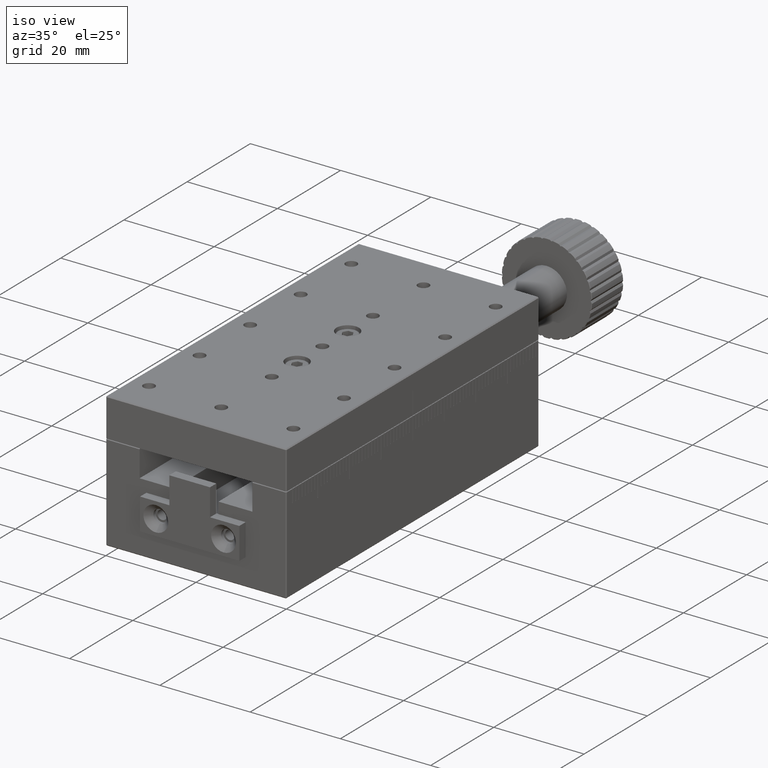
[diagram: clean part render]
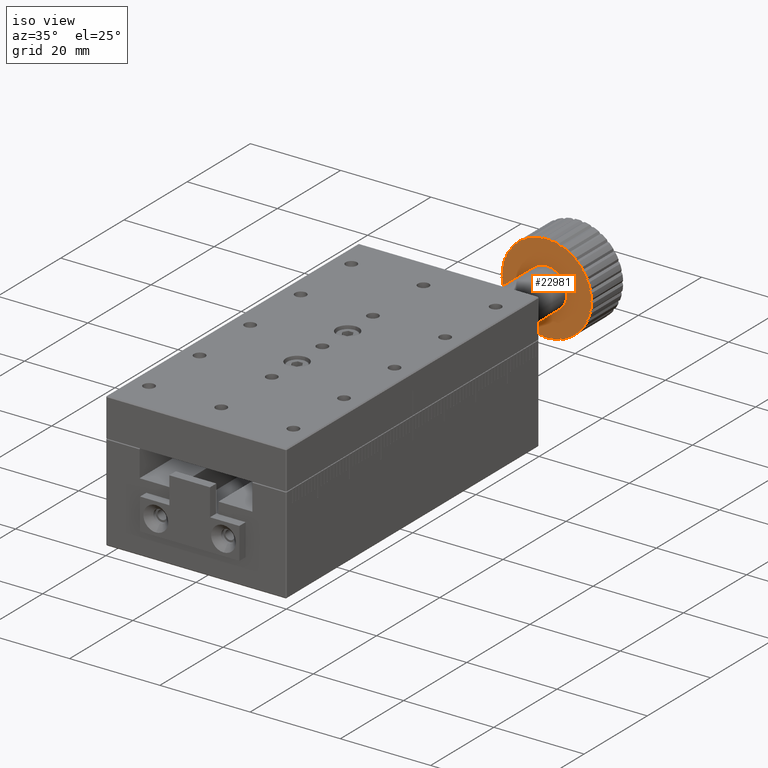
[diagram: same view with one face highlighted and labeled with its STEP entity id]
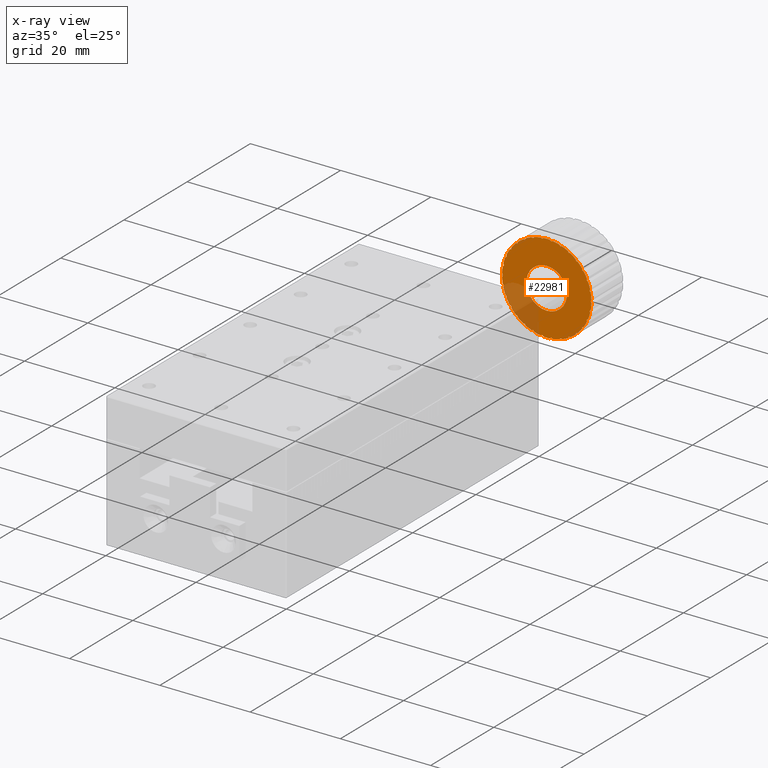
[diagram: x-ray of the same camera — body ghosted, the highlighted face saturated]
A machine part, iso view. The second image highlights one B-rep face of the part: STEP entity #22981.
The next image is the same camera in x-ray: the body ghosted, the highlighted face saturated — about 18% of this face is hidden behind the body in this view.
In plain terms, the highlighted planar face has unit normal (0, 1, 0).
Its self-contained STEP definition (entity closure, byte-faithful):
#76 = ORIENTED_EDGE ( 'NONE', *, *, #2663, .T. ) ;
#163 = VERTEX_POINT ( 'NONE', #7104 ) ;
#196 = LINE ( 'NONE', #10743, #4490 ) ;
#217 = LINE ( 'NONE', #3878, #16400 ) ;
#238 = VERTEX_POINT ( 'NONE', #23415 ) ;
#248 = EDGE_CURVE ( 'NONE', #21812, #12477, #15667, .T. ) ;
#254 = LINE ( 'NONE', #20639, #5194 ) ;
#298 = EDGE_CURVE ( 'NONE', #941, #14638, #15009, .T. ) ;
#302 = CARTESIAN_POINT ( 'NONE',  ( 0.7908932905000000100, 71.00000000000001400, 24.32102808800000200 ) ) ;
#381 = VECTOR ( 'NONE', #3602, 1000.000000000000200 ) ;
#427 = ORIENTED_EDGE ( 'NONE', *, *, #2290, .T. ) ;
#458 = DIRECTION ( 'NONE',  ( 0.0000000000000000000, 0.0000000000000000000, -1.000000000000000000 ) ) ;
#466 = DIRECTION ( 'NONE',  ( 0.6691306060866301100, 0.0000000000000000000, 0.7431448257225093900 ) ) ;
#478 = VERTEX_POINT ( 'NONE', #7133 ) ;
#695 = CIRCLE ( 'NONE', #26715, 9.900000000000000400 ) ;
#708 = CARTESIAN_POINT ( 'NONE',  ( -6.857258225726241100, 71.00000000000001400, 7.359411114921275800 ) ) ;
#848 = VERTEX_POINT ( 'NONE', #10708 ) ;
#859 = EDGE_CURVE ( 'NONE', #238, #22002, #14955, .T. ) ;
#928 = AXIS2_PLACEMENT_3D ( 'NONE', #11682, #26435, #13819 ) ;
#938 = LINE ( 'NONE', #3841, #11475 ) ;
#941 = VERTEX_POINT ( 'NONE', #14807 ) ;
#961 = VECTOR ( 'NONE', #2161, 1000.000000000000000 ) ;
#1060 = VERTEX_POINT ( 'NONE', #21342 ) ;
#1170 = VERTEX_POINT ( 'NONE', #19744 ) ;
#1179 = VERTEX_POINT ( 'NONE', #25245 ) ;
#1227 = DIRECTION ( 'NONE',  ( 0.0000000000000000000, 1.000000000000000000, -0.0000000000000000000 ) ) ;
#1247 = ORIENTED_EDGE ( 'NONE', *, *, #5593, .T. ) ;
#1257 = LINE ( 'NONE', #23924, #21741 ) ;
#1273 = DIRECTION ( 'NONE',  ( 0.0000000000000000000, 0.0000000000000000000, 1.000000000000000000 ) ) ;
#1301 = DIRECTION ( 'NONE',  ( 0.0000000000000000000, 0.0000000000000000000, 1.000000000000000000 ) ) ;
#1304 = CARTESIAN_POINT ( 'NONE',  ( 9.499109117128835300, 71.00000000000001400, 12.48090202660349500 ) ) ;
#1307 = DIRECTION ( 'NONE',  ( 1.000000000000000000, 0.0000000000000000000, 0.0000000000000000000 ) ) ;
#1326 = EDGE_CURVE ( 'NONE', #10853, #1502, #17932, .T. ) ;
#1353 = EDGE_CURVE ( 'NONE', #1060, #22044, #12287, .T. ) ;
#1388 = CARTESIAN_POINT ( 'NONE',  ( -1.350505600759480500, 71.00000000046399900, 24.30745301449384900 ) ) ;
#1415 = EDGE_CURVE ( 'NONE', #24068, #17797, #10947, .T. ) ;
#1502 = VERTEX_POINT ( 'NONE', #16128 ) ;
#1518 = CARTESIAN_POINT ( 'NONE',  ( -2.755302259289262400, 71.00000000000001400, 24.00885426641693200 ) ) ;
#1530 = CIRCLE ( 'NONE', #16447, 4.499999999999999100 ) ;
#1537 = ORIENTED_EDGE ( 'NONE', *, *, #1326, .T. ) ;
#1539 = LINE ( 'NONE', #25950, #12099 ) ;
#1547 = EDGE_CURVE ( 'NONE', #10755, #15519, #11255, .T. ) ;
#1562 = VECTOR ( 'NONE', #25789, 1000.000000000000000 ) ;
#1563 = CARTESIAN_POINT ( 'NONE',  ( 0.0000000000000000000, 71.00000000000001400, 14.50000000000000000 ) ) ;
#1569 = VECTOR ( 'NONE', #7955, 1000.000000000000100 ) ;
#1591 = ORIENTED_EDGE ( 'NONE', *, *, #26279, .T. ) ;
#1714 = VECTOR ( 'NONE', #14204, 1000.000000000000100 ) ;
#1731 = CARTESIAN_POINT ( 'NONE',  ( -6.412501585500000300, 71.00000000000001400, 21.98050321300000600 ) ) ;
#1775 = DIRECTION ( 'NONE',  ( 0.0000000000000000000, 0.0000000000000000000, 1.000000000000000000 ) ) ;
#1799 = CARTESIAN_POINT ( 'NONE',  ( 9.095953292000000800, 71.00000000000001400, 18.28704879950000300 ) ) ;
#1816 = DIRECTION ( 'NONE',  ( -0.1045284639390595500, 0.0000000000000000000, -0.9945218952977056300 ) ) ;
#1874 = VERTEX_POINT ( 'NONE', #4020 ) ;
#1914 = EDGE_CURVE ( 'NONE', #15397, #1170, #16873, .T. ) ;
#1932 = VECTOR ( 'NONE', #26355, 1000.000000000000000 ) ;
#1945 = CARTESIAN_POINT ( 'NONE',  ( 0.0000000000000000000, 71.00000000000001400, 14.50000000000000000 ) ) ;
#1949 = CIRCLE ( 'NONE', #22452, 9.900000000000000400 ) ;
#1967 = DIRECTION ( 'NONE',  ( 0.1045284639390602100, 0.0000000000000000000, 0.9945218952977055200 ) ) ;
#2152 = DIRECTION ( 'NONE',  ( -0.9135454577911386000, 0.0000000000000000000, 0.4067366427421791900 ) ) ;
#2154 = CARTESIAN_POINT ( 'NONE',  ( 0.0000000000000000000, 71.00000000000001400, 14.50000000000000000 ) ) ;
#2161 = DIRECTION ( 'NONE',  ( -1.000000000000000000, 0.0000000000000000000, 0.0000000000000000000 ) ) ;
#2290 = EDGE_CURVE ( 'NONE', #848, #12477, #12798, .T. ) ;
#2304 = DIRECTION ( 'NONE',  ( -0.5000000005668213700, 0.0000000000000000000, 0.8660254034571842600 ) ) ;
#2325 = VERTEX_POINT ( 'NONE', #1388 ) ;
#2354 = CARTESIAN_POINT ( 'NONE',  ( -3.000964420999999900, 71.00000000000001400, 5.263981204999999400 ) ) ;
#2374 = VECTOR ( 'NONE', #14542, 1000.000000000000200 ) ;
#2479 = VERTEX_POINT ( 'NONE', #21921 ) ;
#2548 = EDGE_CURVE ( 'NONE', #12790, #20204, #14760, .T. ) ;
#2550 = EDGE_CURVE ( 'NONE', #21812, #19065, #20381, .T. ) ;
#2568 = VERTEX_POINT ( 'NONE', #21759 ) ;
#2663 = EDGE_CURVE ( 'NONE', #9787, #2325, #217, .T. ) ;
#2709 = EDGE_CURVE ( 'NONE', #10826, #21422, #21353, .T. ) ;
#2752 = CARTESIAN_POINT ( 'NONE',  ( 7.827657111500000700, 71.00000000000001400, 20.48380222299999400 ) ) ;
#2931 = LINE ( 'NONE', #16899, #12828 ) ;
#2947 = ORIENTED_EDGE ( 'NONE', *, *, #11646, .T. ) ;
#2954 = DIRECTION ( 'NONE',  ( 0.0000000000000000000, 1.000000000000000000, -0.0000000000000000000 ) ) ;
#2987 = VERTEX_POINT ( 'NONE', #11053 ) ;
#3112 = EDGE_CURVE ( 'NONE', #1060, #17847, #18717, .T. ) ;
#3207 = CARTESIAN_POINT ( 'NONE',  ( 6.498144694621152500, 71.00000000000001400, 21.71692082229308300 ) ) ;
#3210 = VERTEX_POINT ( 'NONE', #21607 ) ;
#3289 = DIRECTION ( 'NONE',  ( 0.0000000000000000000, 1.000000000000000000, -0.0000000000000000000 ) ) ;
#3349 = VERTEX_POINT ( 'NONE', #14794 ) ;
#3360 = EDGE_CURVE ( 'NONE', #16741, #24648, #16350, .T. ) ;
#3570 = EDGE_CURVE ( 'NONE', #21699, #6580, #21938, .T. ) ;
#3602 = DIRECTION ( 'NONE',  ( 0.9135454577911408200, 0.0000000000000000000, 0.4067366427421739700 ) ) ;
#3670 = DIRECTION ( 'NONE',  ( 0.0000000000000000000, 0.0000000000000000000, 1.000000000000000000 ) ) ;
#3686 = DIRECTION ( 'NONE',  ( 0.1045284637515155600, 0.0000000000000000000, 0.9945218953174174100 ) ) ;
#3710 = LINE ( 'NONE', #14799, #14942 ) ;
#3719 = VECTOR ( 'NONE', #9697, 1000.000000000000200 ) ;
#3780 = ORIENTED_EDGE ( 'NONE', *, *, #298, .F. ) ;
#3841 = CARTESIAN_POINT ( 'NONE',  ( -9.095953292000000800, 71.00000000000001400, 10.71295120050000300 ) ) ;
#3856 = DIRECTION ( 'NONE',  ( -0.9135454580896050800, 0.0000000000000000000, 0.4067366420718125400 ) ) ;
#3878 = CARTESIAN_POINT ( 'NONE',  ( -1.268296180499999900, 71.00000000000001400, 24.27085102249999700 ) ) ;
#3967 = CARTESIAN_POINT ( 'NONE',  ( 6.769235297500000700, 71.00000000000001400, 7.340701264000000700 ) ) ;
#4001 = EDGE_CURVE ( 'NONE', #13317, #2325, #16614, .T. ) ;
#4020 = CARTESIAN_POINT ( 'NONE',  ( 6.384693327409155300, 71.00000000024962800, 22.06608823103983500 ) ) ;
#4042 = DIRECTION ( 'NONE',  ( 0.0000000000000000000, 0.0000000000000000000, 1.000000000000000000 ) ) ;
#4073 = DIRECTION ( 'NONE',  ( 0.9781476008482026300, 0.0000000000000000000, 0.2079116902795637200 ) ) ;
#4087 = ORIENTED_EDGE ( 'NONE', *, *, #4001, .F. ) ;
#4167 = EDGE_CURVE ( 'NONE', #7359, #4791, #4376, .T. ) ;
#4178 = VECTOR ( 'NONE', #22725, 1000.000000000000200 ) ;
#4194 = DIRECTION ( 'NONE',  ( 0.0000000000000000000, 1.000000000000000000, -0.0000000000000000000 ) ) ;
#4206 = DIRECTION ( 'NONE',  ( 0.0000000000000000000, 1.000000000000000000, 0.0000000000000000000 ) ) ;
#4244 = DIRECTION ( 'NONE',  ( 0.3090169946488867700, 0.0000000000000000000, -0.9510565162061452900 ) ) ;
#4361 = ORIENTED_EDGE ( 'NONE', *, *, #14618, .T. ) ;
#4376 = CIRCLE ( 'NONE', #21794, 9.900000000000000400 ) ;
#4403 = CARTESIAN_POINT ( 'NONE',  ( 9.684556608000001200, 71.00000000000001400, 16.31313766850000500 ) ) ;
#4490 = VECTOR ( 'NONE', #23440, 999.9999999999998900 ) ;
#4577 = EDGE_CURVE ( 'NONE', #22044, #23320, #10522, .T. ) ;
#4607 = ORIENTED_EDGE ( 'NONE', *, *, #18144, .F. ) ;
#4630 = EDGE_CURVE ( 'NONE', #13111, #10427, #16158, .T. ) ;
#4652 = CARTESIAN_POINT ( 'NONE',  ( 8.192022588704373800, 70.99999999947759500, 8.941154265873750600 ) ) ;
#4690 = VERTEX_POINT ( 'NONE', #16940 ) ;
#4699 = VERTEX_POINT ( 'NONE', #16751 ) ;
#4782 = DIRECTION ( 'NONE',  ( 0.0000000000000000000, 1.000000000000000000, -0.0000000000000000000 ) ) ;
#4791 = VERTEX_POINT ( 'NONE', #8866 ) ;
#4908 = AXIS2_PLACEMENT_3D ( 'NONE', #1945, #16709, #4042 ) ;
#5024 = VERTEX_POINT ( 'NONE', #9270 ) ;
#5025 = LINE ( 'NONE', #13479, #9966 ) ;
#5066 = VECTOR ( 'NONE', #23771, 999.9999999999998900 ) ;
#5068 = CARTESIAN_POINT ( 'NONE',  ( 1.350505600512928100, 71.00000000032162000, 4.692546985615923200 ) ) ;
#5106 = VECTOR ( 'NONE', #9458, 1000.000000000000200 ) ;
#5166 = CARTESIAN_POINT ( 'NONE',  ( 9.684556608000001200, 71.00000000000001400, 12.68686233150000000 ) ) ;
#5194 = VECTOR ( 'NONE', #12241, 1000.000000000000000 ) ;
#5250 = ORIENTED_EDGE ( 'NONE', *, *, #7711, .F. ) ;
#5358 = CARTESIAN_POINT ( 'NONE',  ( -0.7180903259528079700, 71.00000000000001400, 24.37392253786574500 ) ) ;
#5373 = VERTEX_POINT ( 'NONE', #11150 ) ;
#5376 = EDGE_CURVE ( 'NONE', #5373, #17852, #14824, .T. ) ;
#5396 = DIRECTION ( 'NONE',  ( 0.0000000000000000000, 0.0000000000000000000, 1.000000000000000000 ) ) ;
#5415 = EDGE_CURVE ( 'NONE', #23874, #25942, #6556, .T. ) ;
#5496 = CARTESIAN_POINT ( 'NONE',  ( -7.818250656360298500, 71.00000000000001400, 20.57329866500255000 ) ) ;
#5593 = EDGE_CURVE ( 'NONE', #26627, #13797, #27315, .T. ) ;
#5609 = EDGE_CURVE ( 'NONE', #11182, #4791, #15445, .T. ) ;
#5624 = EDGE_CURVE ( 'NONE', #14428, #17154, #10484, .T. ) ;
#5654 = ORIENTED_EDGE ( 'NONE', *, *, #248, .F. ) ;
#5716 = CARTESIAN_POINT ( 'NONE',  ( 9.744771278786270600, 71.00000000000001400, 16.24626250149918900 ) ) ;
#5727 = EDGE_CURVE ( 'NONE', #7679, #10427, #24075, .T. ) ;
#5770 = CARTESIAN_POINT ( 'NONE',  ( 6.412501585500000300, 71.00000000000001400, 21.98050321300000600 ) ) ;
#5853 = CARTESIAN_POINT ( 'NONE',  ( -8.192022589609006600, 71.00000000000001400, 8.941154266276518200 ) ) ;
#5871 = CARTESIAN_POINT ( 'NONE',  ( -3.272055022500000000, 71.00000000000001400, 23.79364088100000500 ) ) ;
#5954 = CARTESIAN_POINT ( 'NONE',  ( 4.855662433000000900, 71.00000000000001400, 6.089745962000000300 ) ) ;
#5957 = DIRECTION ( 'NONE',  ( -0.9781476008482019600, 0.0000000000000000000, 0.2079116902795670200 ) ) ;
#6024 = CARTESIAN_POINT ( 'NONE',  ( -1.015109865307357800, 71.00000000000001400, 24.15812521105015200 ) ) ;
#6147 = VERTEX_POINT ( 'NONE', #21956 ) ;
#6153 = CARTESIAN_POINT ( 'NONE',  ( -9.499109117000001500, 71.00000000000001400, 16.51909797300000100 ) ) ;
#6154 = ORIENTED_EDGE ( 'NONE', *, *, #26375, .T. ) ;
#6160 = ORIENTED_EDGE ( 'NONE', *, *, #4167, .F. ) ;
#6181 = ORIENTED_EDGE ( 'NONE', *, *, #16425, .T. ) ;
#6308 = CARTESIAN_POINT ( 'NONE',  ( 9.744771279491606800, 71.00000000055609900, 12.75373749928417100 ) ) ;
#6333 = VERTEX_POINT ( 'NONE', #17181 ) ;
#6369 = ORIENTED_EDGE ( 'NONE', *, *, #24626, .T. ) ;
#6382 = CARTESIAN_POINT ( 'NONE',  ( 0.0000000000000000000, 71.00000000000001400, 14.50000000000000000 ) ) ;
#6385 = DIRECTION ( 'NONE',  ( 0.0000000000000000000, 1.000000000000000000, -0.0000000000000000000 ) ) ;
#6386 = EDGE_CURVE ( 'NONE', #23477, #9716, #20670, .T. ) ;
#6427 = CARTESIAN_POINT ( 'NONE',  ( 0.0000000000000000000, 71.00000000000001400, 14.50000000000000000 ) ) ;
#6475 = AXIS2_PLACEMENT_3D ( 'NONE', #20975, #8302, #23146 ) ;
#6483 = ORIENTED_EDGE ( 'NONE', *, *, #26668, .T. ) ;
#6556 = LINE ( 'NONE', #14621, #961 ) ;
#6563 = EDGE_CURVE ( 'NONE', #238, #17154, #13386, .T. ) ;
#6573 = EDGE_CURVE ( 'NONE', #14428, #26980, #16354, .T. ) ;
#6576 = CARTESIAN_POINT ( 'NONE',  ( -4.717088969499999800, 71.00000000000001400, 5.849729682999999600 ) ) ;
#6580 = VERTEX_POINT ( 'NONE', #8444 ) ;
#6593 = CARTESIAN_POINT ( 'NONE',  ( 1.015109864000000000, 71.00000000000001400, 4.841874788000001000 ) ) ;
#6656 = DIRECTION ( 'NONE',  ( 0.0000000000000000000, 0.0000000000000000000, 1.000000000000000000 ) ) ;
#6697 = CARTESIAN_POINT ( 'NONE',  ( -9.894893035234652200, 70.99999999988887100, 14.18205060298171800 ) ) ;
#6750 = AXIS2_PLACEMENT_3D ( 'NONE', #12209, #26942, #14344 ) ;
#6756 = VECTOR ( 'NONE', #16368, 1000.000000000000000 ) ;
#6773 = CARTESIAN_POINT ( 'NONE',  ( -2.815516929999999400, 71.00000000000001400, 23.94197909950000300 ) ) ;
#6791 = VERTEX_POINT ( 'NONE', #16007 ) ;
#6793 = ORIENTED_EDGE ( 'NONE', *, *, #11384, .F. ) ;
#6796 = VERTEX_POINT ( 'NONE', #13442 ) ;
#6879 = DIRECTION ( 'NONE',  ( 0.5000000005668257000, 0.0000000000000000000, 0.8660254034571816000 ) ) ;
#6906 = CIRCLE ( 'NONE', #7350, 9.900000000000000400 ) ;
#6961 = CARTESIAN_POINT ( 'NONE',  ( -6.384693327555371700, 71.00000000000001400, 22.06608823058983000 ) ) ;
#7012 = EDGE_CURVE ( 'NONE', #13699, #15264, #9677, .T. ) ;
#7016 = ORIENTED_EDGE ( 'NONE', *, *, #5609, .T. ) ;
#7104 = CARTESIAN_POINT ( 'NONE',  ( -3.360077951730890500, 71.00000000000001400, 5.187649267865178400 ) ) ;
#7113 = DIRECTION ( 'NONE',  ( -0.9781476008482020700, 0.0000000000000000000, 0.2079116902795667400 ) ) ;
#7116 = VERTEX_POINT ( 'NONE', #16416 ) ;
#7133 = CARTESIAN_POINT ( 'NONE',  ( 9.168756256674068800, 71.00000000000871100, 10.76584565050231700 ) ) ;
#7141 = ORIENTED_EDGE ( 'NONE', *, *, #1914, .T. ) ;
#7170 = ORIENTED_EDGE ( 'NONE', *, *, #14859, .T. ) ;
#7277 = DIRECTION ( 'NONE',  ( 0.0000000000000000000, 1.000000000000000000, -0.0000000000000000000 ) ) ;
#7280 = DIRECTION ( 'NONE',  ( 0.6691306060866288900, 0.0000000000000000000, 0.7431448257225105000 ) ) ;
#7310 = CARTESIAN_POINT ( 'NONE',  ( 0.0000000000000000000, 71.00000000000001400, 14.50000000000000000 ) ) ;
#7350 = AXIS2_PLACEMENT_3D ( 'NONE', #21540, #8861, #23696 ) ;
#7359 = VERTEX_POINT ( 'NONE', #7659 ) ;
#7448 = ORIENTED_EDGE ( 'NONE', *, *, #18613, .F. ) ;
#7526 = DIRECTION ( 'NONE',  ( -0.9781476008482019600, 0.0000000000000000000, -0.2079116902795670200 ) ) ;
#7553 = EDGE_CURVE ( 'NONE', #12621, #21728, #5025, .T. ) ;
#7645 = CARTESIAN_POINT ( 'NONE',  ( 0.0000000000000000000, 71.00000000000001400, 14.50000000000000000 ) ) ;
#7659 = CARTESIAN_POINT ( 'NONE',  ( 6.857258225726237600, 71.00000000000001400, 21.64058888507872800 ) ) ;
#7679 = VERTEX_POINT ( 'NONE', #16136 ) ;
#7700 = CARTESIAN_POINT ( 'NONE',  ( 0.0000000000000000000, 71.00000000000001400, 14.50000000000000000 ) ) ;
#7711 = EDGE_CURVE ( 'NONE', #27168, #17750, #19602, .T. ) ;
#7719 = VECTOR ( 'NONE', #24818, 1000.000000000000200 ) ;
#7895 = CARTESIAN_POINT ( 'NONE',  ( -3.360077952034823800, 71.00000000016393600, 23.81235073219943000 ) ) ;
#7914 = CARTESIAN_POINT ( 'NONE',  ( 9.499109116376354600, 71.00000000000001400, 16.51909797369263400 ) ) ;
#7955 = DIRECTION ( 'NONE',  ( 0.6691306060866288900, 0.0000000000000000000, -0.7431448257225105000 ) ) ;
#7976 = DIRECTION ( 'NONE',  ( 0.0000000000000000000, 1.000000000000000000, -0.0000000000000000000 ) ) ;
#8047 = FACE_BOUND ( 'NONE', #20279, .T. ) ;
#8049 = VERTEX_POINT ( 'NONE', #11588 ) ;
#8054 = EDGE_CURVE ( 'NONE', #22002, #2568, #8594, .T. ) ;
#8186 = DIRECTION ( 'NONE',  ( 0.3090169946488867700, 0.0000000000000000000, 0.9510565162061452900 ) ) ;
#8226 = EDGE_CURVE ( 'NONE', #16426, #6796, #8910, .T. ) ;
#8229 = DIRECTION ( 'NONE',  ( 0.0000000000000000000, 1.000000000000000000, -0.0000000000000000000 ) ) ;
#8243 = AXIS2_PLACEMENT_3D ( 'NONE', #26555, #13938, #1301 ) ;
#8302 = DIRECTION ( 'NONE',  ( 0.0000000000000000000, 1.000000000000000000, -0.0000000000000000000 ) ) ;
#8309 = CARTESIAN_POINT ( 'NONE',  ( 0.0000000000000000000, 71.00000000000001400, 14.50000000000000000 ) ) ;
#8364 = LINE ( 'NONE', #1731, #7719 ) ;
#8404 = CARTESIAN_POINT ( 'NONE',  ( 3.272055022500000000, 71.00000000000001400, 5.206359119000000000 ) ) ;
#8444 = CARTESIAN_POINT ( 'NONE',  ( -7.856626854152899900, 71.00000000000001400, 20.20817353454525600 ) ) ;
#8487 = CARTESIAN_POINT ( 'NONE',  ( -0.7908932905000000100, 71.00000000000001400, 4.678971912000000600 ) ) ;
#8489 = DIRECTION ( 'NONE',  ( 0.0000000000000000000, 0.0000000000000000000, 1.000000000000000000 ) ) ;
#8530 = DIRECTION ( 'NONE',  ( 0.0000000000000000000, 0.0000000000000000000, 1.000000000000000000 ) ) ;
#8590 = EDGE_CURVE ( 'NONE', #16426, #9716, #18081, .T. ) ;
#8594 = CIRCLE ( 'NONE', #928, 9.900000000000000400 ) ;
#8654 = VERTEX_POINT ( 'NONE', #11645 ) ;
#8684 = CARTESIAN_POINT ( 'NONE',  ( -8.910112915667898600, 70.99999999998091500, 18.81507680460847700 ) ) ;
#8768 = DIRECTION ( 'NONE',  ( -0.9135454580896050800, 0.0000000000000000000, -0.4067366420718125400 ) ) ;
#8784 = CARTESIAN_POINT ( 'NONE',  ( -9.711324864999999900, 71.00000000000001400, 14.50000000000000000 ) ) ;
#8792 = ORIENTED_EDGE ( 'NONE', *, *, #16383, .T. ) ;
#8861 = DIRECTION ( 'NONE',  ( 0.0000000000000000000, 1.000000000000000000, -0.0000000000000000000 ) ) ;
#8864 = CARTESIAN_POINT ( 'NONE',  ( -9.584752227500001000, 71.00000000000001400, 12.21731963650000300 ) ) ;
#8866 = CARTESIAN_POINT ( 'NONE',  ( 7.818250656413289000, 70.99999999973256600, 20.57329866449838500 ) ) ;
#8899 = CARTESIAN_POINT ( 'NONE',  ( -9.584752227500001000, 71.00000000000001400, 16.78268036350000300 ) ) ;
#8900 = CIRCLE ( 'NONE', #16650, 4.499999999999999100 ) ;
#8910 = LINE ( 'NONE', #1799, #24481 ) ;
#8920 = ORIENTED_EDGE ( 'NONE', *, *, #18502, .F. ) ;
#8952 = DIRECTION ( 'NONE',  ( 0.0000000000000000000, 1.000000000000000000, -0.0000000000000000000 ) ) ;
#8991 = CARTESIAN_POINT ( 'NONE',  ( -8.900706460500002100, 71.00000000000001400, 10.27441963750000100 ) ) ;
#9004 = CARTESIAN_POINT ( 'NONE',  ( 0.0000000000000000000, 71.00000000000001400, 14.50000000000000000 ) ) ;
#9007 = VECTOR ( 'NONE', #19540, 1000.000000000000200 ) ;
#9071 = DIRECTION ( 'NONE',  ( 0.0000000000000000000, 1.000000000000000000, -0.0000000000000000000 ) ) ;
#9205 = VECTOR ( 'NONE', #23511, 1000.000000000000000 ) ;
#9270 = CARTESIAN_POINT ( 'NONE',  ( -6.857258225761353500, 71.00000000001894300, 21.64058888507126000 ) ) ;
#9280 = VECTOR ( 'NONE', #24414, 1000.000000000000000 ) ;
#9304 = CIRCLE ( 'NONE', #14272, 9.900000000000000400 ) ;
#9307 = AXIS2_PLACEMENT_3D ( 'NONE', #23163, #10464, #25239 ) ;
#9366 = VERTEX_POINT ( 'NONE', #13087 ) ;
#9458 = DIRECTION ( 'NONE',  ( 0.3090169951790963700, 0.0000000000000000000, -0.9510565160338696500 ) ) ;
#9463 = CARTESIAN_POINT ( 'NONE',  ( 4.717088969499999800, 71.00000000000001400, 23.15027031700000000 ) ) ;
#9469 = CARTESIAN_POINT ( 'NONE',  ( 5.222798772335070600, 71.00000000000001400, 22.91025403800000100 ) ) ;
#9510 = VERTEX_POINT ( 'NONE', #13447 ) ;
#9553 = CARTESIAN_POINT ( 'NONE',  ( 1.268296180499999900, 71.00000000000001400, 24.27085102249999700 ) ) ;
#9677 = LINE ( 'NONE', #23893, #15313 ) ;
#9697 = DIRECTION ( 'NONE',  ( -0.1045284639390602100, -0.0000000000000000000, 0.9945218952977055200 ) ) ;
#9716 = VERTEX_POINT ( 'NONE', #20625 ) ;
#9719 = LINE ( 'NONE', #13117, #25912 ) ;
#9759 = ORIENTED_EDGE ( 'NONE', *, *, #10696, .T. ) ;
#9770 = DIRECTION ( 'NONE',  ( 0.0000000000000000000, 0.0000000000000000000, 1.000000000000000000 ) ) ;
#9787 = VERTEX_POINT ( 'NONE', #6024 ) ;
#9823 = DIRECTION ( 'NONE',  ( 0.0000000000000000000, 0.0000000000000000000, 1.000000000000000000 ) ) ;
#9882 = DIRECTION ( 'NONE',  ( -0.9135454577911386000, 0.0000000000000000000, -0.4067366427421791900 ) ) ;
#9966 = VECTOR ( 'NONE', #11427, 1000.000000000000000 ) ;
#9999 = DIRECTION ( 'NONE',  ( -0.3090169946488876600, 0.0000000000000000000, 0.9510565162061449500 ) ) ;
#10005 = EDGE_CURVE ( 'NONE', #9366, #17852, #25866, .T. ) ;
#10024 = CARTESIAN_POINT ( 'NONE',  ( -5.222798772644294400, 71.00000000016314100, 22.91025403800000100 ) ) ;
#10150 = ORIENTED_EDGE ( 'NONE', *, *, #10804, .T. ) ;
#10215 = VECTOR ( 'NONE', #21806, 1000.000000000000200 ) ;
#10257 = CARTESIAN_POINT ( 'NONE',  ( 4.855662432429571000, 71.00000000000001400, 22.91025403800000100 ) ) ;
#10278 = VERTEX_POINT ( 'NONE', #12428 ) ;
#10427 = VERTEX_POINT ( 'NONE', #6697 ) ;
#10464 = DIRECTION ( 'NONE',  ( 0.0000000000000000000, 1.000000000000000000, -0.0000000000000000000 ) ) ;
#10484 = CIRCLE ( 'NONE', #22374, 9.900000000000003900 ) ;
#10511 = DIRECTION ( 'NONE',  ( 0.0000000000000000000, 1.000000000000000000, -0.0000000000000000000 ) ) ;
#10522 = LINE ( 'NONE', #19510, #21792 ) ;
#10568 = CARTESIAN_POINT ( 'NONE',  ( 3.360077951770843500, 71.00000000002154400, 5.187649267856687500 ) ) ;
#10586 = CARTESIAN_POINT ( 'NONE',  ( -5.132809359500000400, 71.00000000000001400, 22.91025403800000100 ) ) ;
#10650 = CIRCLE ( 'NONE', #15697, 9.899999999999996800 ) ;
#10662 = ORIENTED_EDGE ( 'NONE', *, *, #18866, .F. ) ;
#10689 = LINE ( 'NONE', #6576, #15661 ) ;
#10696 = EDGE_CURVE ( 'NONE', #163, #10853, #19246, .T. ) ;
#10708 = CARTESIAN_POINT ( 'NONE',  ( -8.871736718000002900, 71.00000000000001400, 10.55004832400000200 ) ) ;
#10743 = CARTESIAN_POINT ( 'NONE',  ( -6.769235297500000700, 71.00000000000001400, 21.65929873600000400 ) ) ;
#10750 = ORIENTED_EDGE ( 'NONE', *, *, #14544, .F. ) ;
#10755 = VERTEX_POINT ( 'NONE', #23153 ) ;
#10804 = EDGE_CURVE ( 'NONE', #4690, #17922, #22878, .T. ) ;
#10807 = CARTESIAN_POINT ( 'NONE',  ( 9.168756256660721200, 71.00000000000001400, 18.23415434950738900 ) ) ;
#10826 = VERTEX_POINT ( 'NONE', #12776 ) ;
#10851 = CARTESIAN_POINT ( 'NONE',  ( 8.910112915671682300, 71.00000000000001400, 10.18492319535553400 ) ) ;
#10853 = VERTEX_POINT ( 'NONE', #2354 ) ;
#10855 = CARTESIAN_POINT ( 'NONE',  ( -9.095953292000000800, 71.00000000000001400, 18.28704879950000300 ) ) ;
#10931 = VECTOR ( 'NONE', #1307, 1000.000000000000000 ) ;
#10947 = LINE ( 'NONE', #5871, #21532 ) ;
#10952 = DIRECTION ( 'NONE',  ( -0.8090169943657873300, 0.0000000000000000000, -0.5877852523050807200 ) ) ;
#11038 = ORIENTED_EDGE ( 'NONE', *, *, #14745, .F. ) ;
#11041 = VERTEX_POINT ( 'NONE', #15621 ) ;
#11053 = CARTESIAN_POINT ( 'NONE',  ( 7.856626853999999000, 71.00000000000001400, 8.791826463999997900 ) ) ;
#11150 = CARTESIAN_POINT ( 'NONE',  ( -9.168756256660721200, 71.00000000000001400, 10.76584565049262000 ) ) ;
#11182 = VERTEX_POINT ( 'NONE', #20329 ) ;
#11187 = DIRECTION ( 'NONE',  ( 0.0000000000000000000, 1.000000000000000000, -0.0000000000000000000 ) ) ;
#11212 = CARTESIAN_POINT ( 'NONE',  ( 0.0000000000000000000, 71.00000000000001400, 14.50000000000000000 ) ) ;
#11241 = ORIENTED_EDGE ( 'NONE', *, *, #16648, .T. ) ;
#11255 = LINE ( 'NONE', #16064, #21847 ) ;
#11362 = CARTESIAN_POINT ( 'NONE',  ( 8.871736717929309200, 71.00000000000001400, 10.55004832467260200 ) ) ;
#11384 = EDGE_CURVE ( 'NONE', #19737, #3349, #15844, .T. ) ;
#11427 = DIRECTION ( 'NONE',  ( -0.6691306060866310000, 0.0000000000000000000, 0.7431448257225087300 ) ) ;
#11450 = CARTESIAN_POINT ( 'NONE',  ( 4.672094262919947600, 71.00000000000001400, 5.771796565249495400 ) ) ;
#11469 = DIRECTION ( 'NONE',  ( 0.0000000000000000000, 1.000000000000000000, -0.0000000000000000000 ) ) ;
#11475 = VECTOR ( 'NONE', #18639, 1000.000000000000100 ) ;
#11588 = CARTESIAN_POINT ( 'NONE',  ( 3.360077951730880300, 71.00000000000001400, 23.81235073213482800 ) ) ;
#11607 = AXIS2_PLACEMENT_3D ( 'NONE', #7700, #22518, #9823 ) ;
#11645 = CARTESIAN_POINT ( 'NONE',  ( 5.510910596163087600E-016, 71.00000000000001400, 19.00000000000000000 ) ) ;
#11646 = EDGE_CURVE ( 'NONE', #23818, #10826, #20152, .T. ) ;
#11676 = AXIS2_PLACEMENT_3D ( 'NONE', #2154, #6385, #21158 ) ;
#11682 = CARTESIAN_POINT ( 'NONE',  ( 0.0000000000000000000, 71.00000000000001400, 14.50000000000000000 ) ) ;
#11778 = ORIENTED_EDGE ( 'NONE', *, *, #19134, .T. ) ;
#11782 = CARTESIAN_POINT ( 'NONE',  ( 3.272055022500000000, 71.00000000000001400, 23.79364088100000500 ) ) ;
#11811 = CIRCLE ( 'NONE', #14302, 9.900000000000003900 ) ;
#11816 = CIRCLE ( 'NONE', #14642, 9.900000000000000400 ) ;
#11819 = CARTESIAN_POINT ( 'NONE',  ( -9.168756256892409700, 71.00000000015107600, 18.23415434933905400 ) ) ;
#11904 = VECTOR ( 'NONE', #8768, 1000.000000000000000 ) ;
#11922 = ORIENTED_EDGE ( 'NONE', *, *, #4630, .T. ) ;
#12002 = CARTESIAN_POINT ( 'NONE',  ( 4.672094262853659300, 71.00000000006994600, 23.22820343486532100 ) ) ;
#12008 = ORIENTED_EDGE ( 'NONE', *, *, #15118, .F. ) ;
#12018 = EDGE_CURVE ( 'NONE', #25942, #16797, #12478, .T. ) ;
#12099 = VECTOR ( 'NONE', #7113, 999.9999999999998900 ) ;
#12112 = EDGE_CURVE ( 'NONE', #8049, #12621, #16113, .T. ) ;
#12138 = EDGE_CURVE ( 'NONE', #23460, #2479, #21065, .T. ) ;
#12191 = DIRECTION ( 'NONE',  ( 0.0000000000000000000, 0.0000000000000000000, 1.000000000000000000 ) ) ;
#12200 = CIRCLE ( 'NONE', #8243, 9.900000000000000400 ) ;
#12209 = CARTESIAN_POINT ( 'NONE',  ( 10.01363175200000000, 71.00000000000001400, 24.51880000000000200 ) ) ;
#12229 = ORIENTED_EDGE ( 'NONE', *, *, #12851, .F. ) ;
#12236 = EDGE_CURVE ( 'NONE', #5373, #848, #938, .T. ) ;
#12239 = EDGE_CURVE ( 'NONE', #19065, #6791, #254, .T. ) ;
#12241 = DIRECTION ( 'NONE',  ( 0.1045284637515155600, 0.0000000000000000000, -0.9945218953174174100 ) ) ;
#12287 = LINE ( 'NONE', #21919, #17253 ) ;
#12338 = ORIENTED_EDGE ( 'NONE', *, *, #22391, .T. ) ;
#12341 = VECTOR ( 'NONE', #21986, 1000.000000000000000 ) ;
#12428 = CARTESIAN_POINT ( 'NONE',  ( -6.498144696000000700, 71.00000000000001400, 7.283079178000000400 ) ) ;
#12430 = CARTESIAN_POINT ( 'NONE',  ( -0.7180903261564318700, 70.99999999986722800, 4.626077462282204100 ) ) ;
#12462 = VERTEX_POINT ( 'NONE', #4652 ) ;
#12477 = VERTEX_POINT ( 'NONE', #23709 ) ;
#12478 = LINE ( 'NONE', #9463, #1932 ) ;
#12490 = EDGE_CURVE ( 'NONE', #13317, #24068, #18434, .T. ) ;
#12507 = VECTOR ( 'NONE', #8186, 1000.000000000000000 ) ;
#12553 = ORIENTED_EDGE ( 'NONE', *, *, #5727, .F. ) ;
#12576 = LINE ( 'NONE', #16533, #23190 ) ;
#12621 = VERTEX_POINT ( 'NONE', #24161 ) ;
#12635 = CARTESIAN_POINT ( 'NONE',  ( 9.849898328499998400, 71.00000000000001400, 14.74001627900000200 ) ) ;
#12637 = DIRECTION ( 'NONE',  ( -0.3090169951790973600, 0.0000000000000000000, 0.9510565160338693100 ) ) ;
#12776 = CARTESIAN_POINT ( 'NONE',  ( 6.498144696000000700, 71.00000000000001400, 7.283079178000000400 ) ) ;
#12790 = VERTEX_POINT ( 'NONE', #24685 ) ;
#12798 = LINE ( 'NONE', #8991, #24064 ) ;
#12828 = VECTOR ( 'NONE', #4244, 1000.000000000000000 ) ;
#12829 = CARTESIAN_POINT ( 'NONE',  ( 9.612560485420045700, 71.00000000000001400, 12.13173461914819000 ) ) ;
#12851 = EDGE_CURVE ( 'NONE', #21699, #5024, #10650, .T. ) ;
#12932 = ORIENTED_EDGE ( 'NONE', *, *, #3570, .T. ) ;
#13009 = LINE ( 'NONE', #19808, #12341 ) ;
#13087 = CARTESIAN_POINT ( 'NONE',  ( -9.499109117000001500, 71.00000000000001400, 12.48090202700000100 ) ) ;
#13091 = VECTOR ( 'NONE', #9999, 1000.000000000000200 ) ;
#13110 = DIRECTION ( 'NONE',  ( 0.0000000000000000000, 1.000000000000000000, 0.0000000000000000000 ) ) ;
#13111 = VERTEX_POINT ( 'NONE', #8784 ) ;
#13117 = CARTESIAN_POINT ( 'NONE',  ( 2.815516929999999400, 71.00000000000001400, 5.058020900499999000 ) ) ;
#13120 = VECTOR ( 'NONE', #27335, 1000.000000000000100 ) ;
#13291 = EDGE_CURVE ( 'NONE', #6580, #2568, #23583, .T. ) ;
#13317 = VERTEX_POINT ( 'NONE', #1518 ) ;
#13340 = ORIENTED_EDGE ( 'NONE', *, *, #19752, .F. ) ;
#13386 = LINE ( 'NONE', #10855, #18375 ) ;
#13389 = ORIENTED_EDGE ( 'NONE', *, *, #6386, .T. ) ;
#13396 = CARTESIAN_POINT ( 'NONE',  ( -9.612560485420043900, 71.00000000000001400, 16.86826538085181700 ) ) ;
#13415 = CARTESIAN_POINT ( 'NONE',  ( 9.584752227500001000, 71.00000000000001400, 12.21731963650000300 ) ) ;
#13438 = EDGE_CURVE ( 'NONE', #941, #11182, #3710, .T. ) ;
#13442 = CARTESIAN_POINT ( 'NONE',  ( 8.871736718283528900, 71.00000000000001400, 18.44995167579400800 ) ) ;
#13446 = EDGE_CURVE ( 'NONE', #8049, #16797, #9304, .T. ) ;
#13447 = CARTESIAN_POINT ( 'NONE',  ( 0.0000000000000000000, 71.00000000000001400, 10.00000000000000200 ) ) ;
#13461 = ORIENTED_EDGE ( 'NONE', *, *, #17078, .T. ) ;
#13479 = CARTESIAN_POINT ( 'NONE',  ( 2.815516929999999400, 71.00000000000001400, 23.94197909950000300 ) ) ;
#13480 = ORIENTED_EDGE ( 'NONE', *, *, #1547, .T. ) ;
#13589 = CIRCLE ( 'NONE', #9307, 9.900000000000000400 ) ;
#13699 = VERTEX_POINT ( 'NONE', #11450 ) ;
#13748 = ORIENTED_EDGE ( 'NONE', *, *, #12236, .T. ) ;
#13778 = AXIS2_PLACEMENT_3D ( 'NONE', #26524, #13909, #1273 ) ;
#13797 = VERTEX_POINT ( 'NONE', #1304 ) ;
#13819 = DIRECTION ( 'NONE',  ( 0.0000000000000000000, 0.0000000000000000000, 1.000000000000000000 ) ) ;
#13867 = CARTESIAN_POINT ( 'NONE',  ( 0.0000000000000000000, 71.00000000000001400, 14.50000000000000000 ) ) ;
#13909 = DIRECTION ( 'NONE',  ( 0.0000000000000000000, 1.000000000000000000, -0.0000000000000000000 ) ) ;
#13928 = ORIENTED_EDGE ( 'NONE', *, *, #13291, .T. ) ;
#13929 = EDGE_CURVE ( 'NONE', #19816, #22191, #12576, .T. ) ;
#13938 = DIRECTION ( 'NONE',  ( 0.0000000000000000000, 1.000000000000000000, -0.0000000000000000000 ) ) ;
#13946 = CARTESIAN_POINT ( 'NONE',  ( -5.132809359500000400, 71.00000000000001400, 6.089745962000000300 ) ) ;
#13954 = VECTOR ( 'NONE', #23282, 1000.000000000000000 ) ;
#14083 = CARTESIAN_POINT ( 'NONE',  ( 2.755302259956894200, 70.99999999947363000, 24.00885426567545300 ) ) ;
#14123 = ORIENTED_EDGE ( 'NONE', *, *, #2709, .T. ) ;
#14125 = ORIENTED_EDGE ( 'NONE', *, *, #13438, .T. ) ;
#14204 = DIRECTION ( 'NONE',  ( 0.6691306060866301100, 0.0000000000000000000, -0.7431448257225093900 ) ) ;
#14250 = CARTESIAN_POINT ( 'NONE',  ( 5.222798773032326200, 71.00000000036784800, 6.089745961999999400 ) ) ;
#14272 = AXIS2_PLACEMENT_3D ( 'NONE', #6382, #21152, #8489 ) ;
#14302 = AXIS2_PLACEMENT_3D ( 'NONE', #17461, #4782, #19598 ) ;
#14324 = CARTESIAN_POINT ( 'NONE',  ( -4.672094262718718300, 71.00000000021232400, 5.771796564900956400 ) ) ;
#14331 = CARTESIAN_POINT ( 'NONE',  ( -2.815516929999999400, 71.00000000000001400, 5.058020900499999000 ) ) ;
#14334 = ORIENTED_EDGE ( 'NONE', *, *, #5624, .F. ) ;
#14344 = DIRECTION ( 'NONE',  ( 0.0000000000000000000, 0.0000000000000000000, -1.000000000000000000 ) ) ;
#14393 = DIRECTION ( 'NONE',  ( 0.0000000000000000000, 0.0000000000000000000, 1.000000000000000000 ) ) ;
#14406 = LINE ( 'NONE', #19237, #24954 ) ;
#14414 = EDGE_CURVE ( 'NONE', #18153, #10278, #27044, .T. ) ;
#14420 = DIRECTION ( 'NONE',  ( -0.1045284639390595500, 0.0000000000000000000, 0.9945218952977056300 ) ) ;
#14428 = VERTEX_POINT ( 'NONE', #13396 ) ;
#14438 = DIRECTION ( 'NONE',  ( 0.0000000000000000000, 1.000000000000000000, -0.0000000000000000000 ) ) ;
#14467 = DIRECTION ( 'NONE',  ( -0.8090169943657873300, 0.0000000000000000000, 0.5877852523050807200 ) ) ;
#14523 = AXIS2_PLACEMENT_3D ( 'NONE', #20858, #20878, #12191 ) ;
#14542 = DIRECTION ( 'NONE',  ( 0.9781476008482025100, 0.0000000000000000000, 0.2079116902795640500 ) ) ;
#14544 = EDGE_CURVE ( 'NONE', #163, #23486, #12200, .T. ) ;
#14618 = EDGE_CURVE ( 'NONE', #25070, #2987, #25071, .T. ) ;
#14621 = CARTESIAN_POINT ( 'NONE',  ( 5.132809359500000400, 71.00000000000001400, 22.91025403800000100 ) ) ;
#14638 = VERTEX_POINT ( 'NONE', #18592 ) ;
#14642 = AXIS2_PLACEMENT_3D ( 'NONE', #6427, #21197, #8530 ) ;
#14745 = EDGE_CURVE ( 'NONE', #19816, #12462, #17488, .T. ) ;
#14760 = CIRCLE ( 'NONE', #23189, 9.900000000000000400 ) ;
#14794 = CARTESIAN_POINT ( 'NONE',  ( -9.744771279231960300, 71.00000000035139200, 16.24626250100420000 ) ) ;
#14795 = DIRECTION ( 'NONE',  ( -0.5000000005668264700, 0.0000000000000000000, -0.8660254034571812600 ) ) ;
#14799 = CARTESIAN_POINT ( 'NONE',  ( 8.109813170000000700, 71.00000000000001400, 20.09544772549999400 ) ) ;
#14807 = CARTESIAN_POINT ( 'NONE',  ( 8.192022589609015500, 71.00000000000001400, 20.05884573372346900 ) ) ;
#14819 = LINE ( 'NONE', #14937, #15469 ) ;
#14824 = CIRCLE ( 'NONE', #21458, 9.900000000000000400 ) ;
#14859 = EDGE_CURVE ( 'NONE', #12790, #6147, #14819, .T. ) ;
#14885 = DIRECTION ( 'NONE',  ( 0.8090169946003852300, 0.0000000000000000000, -0.5877852519821845600 ) ) ;
#14937 = CARTESIAN_POINT ( 'NONE',  ( 9.849898328499998400, 71.00000000000001400, 14.25998372099999900 ) ) ;
#14942 = VECTOR ( 'NONE', #2152, 1000.000000000000000 ) ;
#14955 = LINE ( 'NONE', #18438, #3719 ) ;
#15007 = DIRECTION ( 'NONE',  ( 0.0000000000000000000, 1.000000000000000000, -0.0000000000000000000 ) ) ;
#15009 = CIRCLE ( 'NONE', #15927, 9.900000000000000400 ) ;
#15036 = DIRECTION ( 'NONE',  ( 0.0000000000000000000, 0.0000000000000000000, 1.000000000000000000 ) ) ;
#15061 = VECTOR ( 'NONE', #25543, 1000.000000000000200 ) ;
#15118 = EDGE_CURVE ( 'NONE', #23818, #20576, #19129, .T. ) ;
#15264 = VERTEX_POINT ( 'NONE', #5954 ) ;
#15313 = VECTOR ( 'NONE', #6879, 1000.000000000000200 ) ;
#15338 = ORIENTED_EDGE ( 'NONE', *, *, #14414, .T. ) ;
#15397 = VERTEX_POINT ( 'NONE', #21174 ) ;
#15445 = LINE ( 'NONE', #2752, #21063 ) ;
#15469 = VECTOR ( 'NONE', #2304, 1000.000000000000000 ) ;
#15486 = CARTESIAN_POINT ( 'NONE',  ( -5.222798772335067100, 71.00000000000001400, 6.089745961999999400 ) ) ;
#15508 = AXIS2_PLACEMENT_3D ( 'NONE', #15568, #2954, #17732 ) ;
#15519 = VERTEX_POINT ( 'NONE', #20557 ) ;
#15556 = EDGE_CURVE ( 'NONE', #10755, #17797, #23702, .T. ) ;
#15558 = ORIENTED_EDGE ( 'NONE', *, *, #6563, .T. ) ;
#15568 = CARTESIAN_POINT ( 'NONE',  ( 0.0000000000000000000, 71.00000000000001400, 14.50000000000000000 ) ) ;
#15621 = CARTESIAN_POINT ( 'NONE',  ( 0.7180903258425066500, 71.00000000007193500, 24.37392253794588000 ) ) ;
#15660 = EDGE_CURVE ( 'NONE', #9510, #8654, #1530, .T. ) ;
#15661 = VECTOR ( 'NONE', #19260, 1000.000000000000200 ) ;
#15667 = CIRCLE ( 'NONE', #11676, 9.900000000000000400 ) ;
#15697 = AXIS2_PLACEMENT_3D ( 'NONE', #27034, #14438, #1775 ) ;
#15732 = EDGE_CURVE ( 'NONE', #23460, #23477, #26911, .T. ) ;
#15749 = EDGE_CURVE ( 'NONE', #6333, #5024, #196, .T. ) ;
#15765 = ORIENTED_EDGE ( 'NONE', *, *, #21772, .T. ) ;
#15844 = CIRCLE ( 'NONE', #19421, 9.900000000000000400 ) ;
#15920 = CARTESIAN_POINT ( 'NONE',  ( 0.0000000000000000000, 71.00000000000001400, 14.50000000000000000 ) ) ;
#15927 = AXIS2_PLACEMENT_3D ( 'NONE', #15920, #3289, #5396 ) ;
#15978 = DIRECTION ( 'NONE',  ( 0.0000000000000000000, 0.0000000000000000000, 1.000000000000000000 ) ) ;
#16007 = CARTESIAN_POINT ( 'NONE',  ( -7.818250656453850300, 70.99999999952785900, 8.426701335887525300 ) ) ;
#16053 = ORIENTED_EDGE ( 'NONE', *, *, #19302, .T. ) ;
#16064 = CARTESIAN_POINT ( 'NONE',  ( -4.717088969499999800, 71.00000000000001400, 23.15027031700000000 ) ) ;
#16113 = LINE ( 'NONE', #11782, #27319 ) ;
#16128 = CARTESIAN_POINT ( 'NONE',  ( -2.755302259776305700, 70.99999999961600800, 4.991145734123989500 ) ) ;
#16136 = CARTESIAN_POINT ( 'NONE',  ( -9.744771278786272400, 71.00000000000001400, 12.75373749850081900 ) ) ;
#16158 = LINE ( 'NONE', #23441, #9205 ) ;
#16204 = EDGE_CURVE ( 'NONE', #19737, #13111, #18037, .T. ) ;
#16275 = CARTESIAN_POINT ( 'NONE',  ( -9.849898328499998400, 71.00000000000001400, 14.74001627900000200 ) ) ;
#16320 = DIRECTION ( 'NONE',  ( 0.0000000000000000000, 1.000000000000000000, -0.0000000000000000000 ) ) ;
#16350 = CIRCLE ( 'NONE', #18251, 9.900000000000000400 ) ;
#16354 = LINE ( 'NONE', #8899, #5106 ) ;
#16368 = DIRECTION ( 'NONE',  ( 0.5000000005668213700, 0.0000000000000000000, -0.8660254034571842600 ) ) ;
#16376 = VECTOR ( 'NONE', #16963, 1000.000000000000000 ) ;
#16383 = EDGE_CURVE ( 'NONE', #3210, #17847, #23293, .T. ) ;
#16400 = VECTOR ( 'NONE', #3856, 1000.000000000000000 ) ;
#16416 = CARTESIAN_POINT ( 'NONE',  ( -4.855662433000000900, 71.00000000000001400, 6.089745962000000300 ) ) ;
#16425 = EDGE_CURVE ( 'NONE', #7116, #23486, #10689, .T. ) ;
#16426 = VERTEX_POINT ( 'NONE', #10807 ) ;
#16438 = EDGE_CURVE ( 'NONE', #1170, #11041, #21279, .T. ) ;
#16447 = AXIS2_PLACEMENT_3D ( 'NONE', #16868, #4206, #19023 ) ;
#16470 = ORIENTED_EDGE ( 'NONE', *, *, #1415, .T. ) ;
#16533 = CARTESIAN_POINT ( 'NONE',  ( 8.900706460500002100, 71.00000000000001400, 10.27441963750000100 ) ) ;
#16543 = ORIENTED_EDGE ( 'NONE', *, *, #12239, .T. ) ;
#16569 = VECTOR ( 'NONE', #16847, 1000.000000000000200 ) ;
#16578 = ORIENTED_EDGE ( 'NONE', *, *, #24914, .T. ) ;
#16580 = VERTEX_POINT ( 'NONE', #23952 ) ;
#16608 = ORIENTED_EDGE ( 'NONE', *, *, #23809, .F. ) ;
#16614 = CIRCLE ( 'NONE', #25133, 9.899999999999996800 ) ;
#16648 = EDGE_CURVE ( 'NONE', #13797, #20204, #23974, .T. ) ;
#16650 = AXIS2_PLACEMENT_3D ( 'NONE', #25746, #13110, #458 ) ;
#16690 = CARTESIAN_POINT ( 'NONE',  ( -9.612560485594858800, 71.00000000029845600, 12.13173461861017400 ) ) ;
#16709 = DIRECTION ( 'NONE',  ( 0.0000000000000000000, 1.000000000000000000, -0.0000000000000000000 ) ) ;
#16741 = VERTEX_POINT ( 'NONE', #5358 ) ;
#16751 = CARTESIAN_POINT ( 'NONE',  ( 2.755302259289258000, 71.00000000000001400, 4.991145733583067600 ) ) ;
#16790 = ORIENTED_EDGE ( 'NONE', *, *, #22539, .F. ) ;
#16797 = VERTEX_POINT ( 'NONE', #12002 ) ;
#16825 = CARTESIAN_POINT ( 'NONE',  ( 0.0000000000000000000, 71.00000000000001400, 24.40000000000000200 ) ) ;
#16847 = DIRECTION ( 'NONE',  ( 0.9781476008482025100, 0.0000000000000000000, -0.2079116902795640500 ) ) ;
#16855 = CARTESIAN_POINT ( 'NONE',  ( 0.0000000000000000000, 71.00000000000001400, 14.50000000000000000 ) ) ;
#16868 = CARTESIAN_POINT ( 'NONE',  ( 0.0000000000000000000, 71.00000000000001400, 14.50000000000000000 ) ) ;
#16873 = LINE ( 'NONE', #9553, #11904 ) ;
#16899 = CARTESIAN_POINT ( 'NONE',  ( -6.412501585500000300, 71.00000000000001400, 7.019496786999999600 ) ) ;
#16940 = CARTESIAN_POINT ( 'NONE',  ( 3.000964420999999900, 71.00000000000001400, 5.263981204999999400 ) ) ;
#16963 = DIRECTION ( 'NONE',  ( -0.6691306060866336600, 0.0000000000000000000, 0.7431448257225064000 ) ) ;
#17001 = VECTOR ( 'NONE', #14885, 1000.000000000000200 ) ;
#17059 = ORIENTED_EDGE ( 'NONE', *, *, #5376, .F. ) ;
#17078 = EDGE_CURVE ( 'NONE', #15264, #20576, #13009, .T. ) ;
#17154 = VERTEX_POINT ( 'NONE', #11819 ) ;
#17181 = CARTESIAN_POINT ( 'NONE',  ( -6.498144695833557800, 71.00000000000001400, 21.71692082251226500 ) ) ;
#17210 = DIRECTION ( 'NONE',  ( -0.8090169946003895600, 0.0000000000000000000, 0.5877852519821784600 ) ) ;
#17238 = LINE ( 'NONE', #13946, #10931 ) ;
#17253 = VECTOR ( 'NONE', #22211, 1000.000000000000200 ) ;
#17254 = ORIENTED_EDGE ( 'NONE', *, *, #19143, .T. ) ;
#17354 = CARTESIAN_POINT ( 'NONE',  ( 6.857258225497372600, 70.99999999987657900, 7.359411114872630200 ) ) ;
#17440 = EDGE_CURVE ( 'NONE', #15519, #17750, #24542, .T. ) ;
#17461 = CARTESIAN_POINT ( 'NONE',  ( 0.0000000000000000000, 71.00000000000001400, 14.50000000000000000 ) ) ;
#17488 = CIRCLE ( 'NONE', #4908, 9.900000000000000400 ) ;
#17569 = CARTESIAN_POINT ( 'NONE',  ( -6.769235297500000700, 71.00000000000001400, 7.340701264000000700 ) ) ;
#17627 = ORIENTED_EDGE ( 'NONE', *, *, #12138, .F. ) ;
#17732 = DIRECTION ( 'NONE',  ( 0.0000000000000000000, 0.0000000000000000000, 1.000000000000000000 ) ) ;
#17734 = ORIENTED_EDGE ( 'NONE', *, *, #3360, .F. ) ;
#17737 = ORIENTED_EDGE ( 'NONE', *, *, #5415, .T. ) ;
#17750 = VERTEX_POINT ( 'NONE', #10024 ) ;
#17777 = LINE ( 'NONE', #20631, #1569 ) ;
#17797 = VERTEX_POINT ( 'NONE', #7895 ) ;
#17810 = VECTOR ( 'NONE', #23200, 1000.000000000000000 ) ;
#17847 = VERTEX_POINT ( 'NONE', #12430 ) ;
#17852 = VERTEX_POINT ( 'NONE', #16690 ) ;
#17922 = VERTEX_POINT ( 'NONE', #10568 ) ;
#17932 = LINE ( 'NONE', #14331, #1714 ) ;
#17939 = ORIENTED_EDGE ( 'NONE', *, *, #13929, .T. ) ;
#17966 = ORIENTED_EDGE ( 'NONE', *, *, #8226, .T. ) ;
#17972 = VECTOR ( 'NONE', #9882, 1000.000000000000000 ) ;
#18037 = LINE ( 'NONE', #16275, #6756 ) ;
#18081 = CIRCLE ( 'NONE', #19701, 9.900000000000000400 ) ;
#18144 = EDGE_CURVE ( 'NONE', #26627, #478, #695, .T. ) ;
#18153 = VERTEX_POINT ( 'NONE', #708 ) ;
#18251 = AXIS2_PLACEMENT_3D ( 'NONE', #22310, #15007, #15036 ) ;
#18275 = AXIS2_PLACEMENT_3D ( 'NONE', #16855, #4194, #19012 ) ;
#18340 = CARTESIAN_POINT ( 'NONE',  ( -8.109813170000000700, 71.00000000000001400, 20.09544772549999400 ) ) ;
#18375 = VECTOR ( 'NONE', #10952, 1000.000000000000100 ) ;
#18413 = ORIENTED_EDGE ( 'NONE', *, *, #16204, .T. ) ;
#18417 = AXIS2_PLACEMENT_3D ( 'NONE', #20651, #7976, #22818 ) ;
#18418 = ORIENTED_EDGE ( 'NONE', *, *, #12018, .T. ) ;
#18434 = LINE ( 'NONE', #6773, #1562 ) ;
#18438 = CARTESIAN_POINT ( 'NONE',  ( -8.929676203000001400, 71.00000000000001400, 19.00120904900000000 ) ) ;
#18502 = EDGE_CURVE ( 'NONE', #25070, #21422, #24780, .T. ) ;
#18592 = CARTESIAN_POINT ( 'NONE',  ( 8.910112915601487800, 70.99999999964573800, 18.81507680397662000 ) ) ;
#18613 = EDGE_CURVE ( 'NONE', #23874, #1874, #6906, .T. ) ;
#18639 = DIRECTION ( 'NONE',  ( 0.8090169943657844500, 0.0000000000000000000, -0.5877852523050849400 ) ) ;
#18717 = CIRCLE ( 'NONE', #14523, 9.900000000000000400 ) ;
#18741 = LINE ( 'NONE', #5770, #13091 ) ;
#18788 = CARTESIAN_POINT ( 'NONE',  ( -7.856626853999999000, 71.00000000000001400, 8.791826463999997900 ) ) ;
#18821 = EDGE_CURVE ( 'NONE', #19318, #16580, #20142, .T. ) ;
#18861 = ORIENTED_EDGE ( 'NONE', *, *, #15749, .T. ) ;
#18866 = EDGE_CURVE ( 'NONE', #13699, #17922, #1949, .T. ) ;
#18918 = CARTESIAN_POINT ( 'NONE',  ( -3.000964422066252400, 71.00000000000001400, 23.73601879381581300 ) ) ;
#19012 = DIRECTION ( 'NONE',  ( 0.0000000000000000000, 0.0000000000000000000, 1.000000000000000000 ) ) ;
#19023 = DIRECTION ( 'NONE',  ( 0.0000000000000000000, 0.0000000000000000000, -1.000000000000000000 ) ) ;
#19065 = VERTEX_POINT ( 'NONE', #18788 ) ;
#19129 = CIRCLE ( 'NONE', #13778, 9.899999999999996800 ) ;
#19133 = ORIENTED_EDGE ( 'NONE', *, *, #12112, .T. ) ;
#19134 = EDGE_CURVE ( 'NONE', #10278, #16580, #2931, .T. ) ;
#19143 = EDGE_CURVE ( 'NONE', #6147, #2479, #23423, .T. ) ;
#19237 = CARTESIAN_POINT ( 'NONE',  ( -1.268296180499999900, 71.00000000000001400, 4.729148977500000400 ) ) ;
#19242 = LINE ( 'NONE', #22285, #9280 ) ;
#19246 = LINE ( 'NONE', #27149, #2374 ) ;
#19251 = EDGE_CURVE ( 'NONE', #15397, #21728, #11811, .T. ) ;
#19260 = DIRECTION ( 'NONE',  ( 0.5000000005668257000, 0.0000000000000000000, -0.8660254034571816000 ) ) ;
#19302 = EDGE_CURVE ( 'NONE', #16741, #9787, #1257, .T. ) ;
#19318 = VERTEX_POINT ( 'NONE', #15486 ) ;
#19421 = AXIS2_PLACEMENT_3D ( 'NONE', #23207, #10511, #25293 ) ;
#19424 = LINE ( 'NONE', #25227, #13120 ) ;
#19492 = VECTOR ( 'NONE', #3686, 1000.000000000000000 ) ;
#19510 = CARTESIAN_POINT ( 'NONE',  ( 1.268296180499999900, 71.00000000000001400, 4.729148977500000400 ) ) ;
#19540 = DIRECTION ( 'NONE',  ( -0.3090169951790973600, 0.0000000000000000000, -0.9510565160338693100 ) ) ;
#19557 = ORIENTED_EDGE ( 'NONE', *, *, #859, .F. ) ;
#19598 = DIRECTION ( 'NONE',  ( 0.0000000000000000000, 0.0000000000000000000, 1.000000000000000000 ) ) ;
#19601 = DIRECTION ( 'NONE',  ( 0.9135454580895991900, 0.0000000000000000000, -0.4067366420718255800 ) ) ;
#19602 = CIRCLE ( 'NONE', #26511, 9.900000000000000400 ) ;
#19614 = AXIS2_PLACEMENT_3D ( 'NONE', #13867, #1227, #15978 ) ;
#19631 = ORIENTED_EDGE ( 'NONE', *, *, #22164, .T. ) ;
#19701 = AXIS2_PLACEMENT_3D ( 'NONE', #24154, #11469, #26230 ) ;
#19737 = VERTEX_POINT ( 'NONE', #23263 ) ;
#19744 = CARTESIAN_POINT ( 'NONE',  ( 1.015109863521699300, 71.00000000000001400, 24.15812521178704800 ) ) ;
#19752 = EDGE_CURVE ( 'NONE', #4699, #23320, #11816, .T. ) ;
#19775 = CARTESIAN_POINT ( 'NONE',  ( 6.384693327555370800, 71.00000000000001400, 6.933911769410172200 ) ) ;
#19808 = CARTESIAN_POINT ( 'NONE',  ( 5.132809359500000400, 71.00000000000001400, 6.089745962000000300 ) ) ;
#19816 = VERTEX_POINT ( 'NONE', #10851 ) ;
#20027 = ORIENTED_EDGE ( 'NONE', *, *, #10005, .T. ) ;
#20142 = CIRCLE ( 'NONE', #19614, 9.900000000000000400 ) ;
#20152 = LINE ( 'NONE', #23017, #12507 ) ;
#20204 = VERTEX_POINT ( 'NONE', #6308 ) ;
#20279 = EDGE_LOOP ( 'NONE', ( #23529, #6483 ) ) ;
#20329 = CARTESIAN_POINT ( 'NONE',  ( 7.856626854180322400, 71.00000000000001400, 20.20817353591971300 ) ) ;
#20381 = LINE ( 'NONE', #22242, #4178 ) ;
#20501 = ORIENTED_EDGE ( 'NONE', *, *, #13446, .F. ) ;
#20510 = ORIENTED_EDGE ( 'NONE', *, *, #3112, .F. ) ;
#20557 = CARTESIAN_POINT ( 'NONE',  ( -4.855662433331319900, 71.00000000000001400, 22.91025403742613500 ) ) ;
#20576 = VERTEX_POINT ( 'NONE', #14250 ) ;
#20625 = CARTESIAN_POINT ( 'NONE',  ( 9.612560485511458800, 71.00000000015607800, 16.86826538113316000 ) ) ;
#20631 = CARTESIAN_POINT ( 'NONE',  ( -9.684556608000001200, 71.00000000000001400, 12.68686233150000000 ) ) ;
#20639 = CARTESIAN_POINT ( 'NONE',  ( -7.827657111500000700, 71.00000000000001400, 8.516197776999998600 ) ) ;
#20651 = CARTESIAN_POINT ( 'NONE',  ( 0.0000000000000000000, 71.00000000000001400, 14.50000000000000000 ) ) ;
#20670 = LINE ( 'NONE', #22136, #15061 ) ;
#20694 = VECTOR ( 'NONE', #4073, 1000.000000000000200 ) ;
#20858 = CARTESIAN_POINT ( 'NONE',  ( 0.0000000000000000000, 71.00000000000001400, 14.50000000000000000 ) ) ;
#20878 = DIRECTION ( 'NONE',  ( 0.0000000000000000000, 1.000000000000000000, -0.0000000000000000000 ) ) ;
#20975 = CARTESIAN_POINT ( 'NONE',  ( 0.0000000000000000000, 71.00000000000001400, 14.50000000000000000 ) ) ;
#21063 = VECTOR ( 'NONE', #26009, 999.9999999999998900 ) ;
#21065 = CIRCLE ( 'NONE', #11607, 9.900000000000000400 ) ;
#21152 = DIRECTION ( 'NONE',  ( 0.0000000000000000000, 1.000000000000000000, -0.0000000000000000000 ) ) ;
#21158 = DIRECTION ( 'NONE',  ( 0.0000000000000000000, 0.0000000000000000000, 1.000000000000000000 ) ) ;
#21174 = CARTESIAN_POINT ( 'NONE',  ( 1.350505599955998700, 71.00000000000001400, 24.30745301413611500 ) ) ;
#21183 = DIRECTION ( 'NONE',  ( 0.0000000000000000000, 0.0000000000000000000, 1.000000000000000000 ) ) ;
#21197 = DIRECTION ( 'NONE',  ( 0.0000000000000000000, 1.000000000000000000, -0.0000000000000000000 ) ) ;
#21279 = LINE ( 'NONE', #302, #26223 ) ;
#21321 = DIRECTION ( 'NONE',  ( 0.9135454580895991900, 0.0000000000000000000, 0.4067366420718255800 ) ) ;
#21342 = CARTESIAN_POINT ( 'NONE',  ( 0.7180903259527627900, 71.00000000000002800, 4.626077462134230000 ) ) ;
#21353 = LINE ( 'NONE', #3967, #20694 ) ;
#21422 = VERTEX_POINT ( 'NONE', #17354 ) ;
#21458 = AXIS2_PLACEMENT_3D ( 'NONE', #11212, #11187, #14393 ) ;
#21517 = LINE ( 'NONE', #26741, #381 ) ;
#21532 = VECTOR ( 'NONE', #5957, 1000.000000000000000 ) ;
#21540 = CARTESIAN_POINT ( 'NONE',  ( 0.0000000000000000000, 71.00000000000001400, 14.50000000000000000 ) ) ;
#21567 = ORIENTED_EDGE ( 'NONE', *, *, #7012, .T. ) ;
#21607 = CARTESIAN_POINT ( 'NONE',  ( -1.015109864000000000, 71.00000000000001400, 4.841874788000001000 ) ) ;
#21699 = VERTEX_POINT ( 'NONE', #5496 ) ;
#21728 = VERTEX_POINT ( 'NONE', #14083 ) ;
#21741 = VECTOR ( 'NONE', #26005, 1000.000000000000100 ) ;
#21759 = CARTESIAN_POINT ( 'NONE',  ( -8.192022588950928600, 70.99999999961997300, 20.05884573401647200 ) ) ;
#21767 = CARTESIAN_POINT ( 'NONE',  ( 0.0000000000000000000, 71.00000000000001400, 14.50000000000000000 ) ) ;
#21772 = EDGE_CURVE ( 'NONE', #7679, #9366, #17777, .T. ) ;
#21792 = VECTOR ( 'NONE', #19601, 1000.000000000000000 ) ;
#21794 = AXIS2_PLACEMENT_3D ( 'NONE', #26829, #26804, #26797 ) ;
#21806 = DIRECTION ( 'NONE',  ( 0.9781476008482026300, 0.0000000000000000000, -0.2079116902795637200 ) ) ;
#21812 = VERTEX_POINT ( 'NONE', #5853 ) ;
#21847 = VECTOR ( 'NONE', #14795, 1000.000000000000000 ) ;
#21877 = EDGE_CURVE ( 'NONE', #22191, #478, #19424, .T. ) ;
#21919 = CARTESIAN_POINT ( 'NONE',  ( 0.7908932905000000100, 71.00000000000001400, 4.678971912000000600 ) ) ;
#21921 = CARTESIAN_POINT ( 'NONE',  ( 9.894893035428673000, 71.00000000009357800, 14.81794939735433300 ) ) ;
#21938 = LINE ( 'NONE', #23805, #5066 ) ;
#21956 = CARTESIAN_POINT ( 'NONE',  ( 9.711324864421332100, 71.00000000000001400, 14.50000000100228100 ) ) ;
#21976 = CARTESIAN_POINT ( 'NONE',  ( 0.0000000000000000000, 71.00000000000001400, 14.50000000000000000 ) ) ;
#21986 = DIRECTION ( 'NONE',  ( 1.000000000000000000, 0.0000000000000000000, 0.0000000000000000000 ) ) ;
#22002 = VERTEX_POINT ( 'NONE', #8684 ) ;
#22044 = VERTEX_POINT ( 'NONE', #6593 ) ;
#22136 = CARTESIAN_POINT ( 'NONE',  ( 9.584752227500001000, 71.00000000000001400, 16.78268036350000300 ) ) ;
#22164 = EDGE_CURVE ( 'NONE', #7359, #27318, #1539, .T. ) ;
#22171 = ORIENTED_EDGE ( 'NONE', *, *, #26296, .T. ) ;
#22191 = VERTEX_POINT ( 'NONE', #11362 ) ;
#22211 = DIRECTION ( 'NONE',  ( 0.8090169946003852300, 0.0000000000000000000, 0.5877852519821845600 ) ) ;
#22242 = CARTESIAN_POINT ( 'NONE',  ( -8.109813170000000700, 71.00000000000001400, 8.904552274499996800 ) ) ;
#22278 = DIRECTION ( 'NONE',  ( 0.0000000000000000000, 1.000000000000000000, -0.0000000000000000000 ) ) ;
#22285 = CARTESIAN_POINT ( 'NONE',  ( -9.684556608000001200, 71.00000000000001400, 16.31313766850000500 ) ) ;
#22310 = CARTESIAN_POINT ( 'NONE',  ( 0.0000000000000000000, 71.00000000000001400, 14.50000000000000000 ) ) ;
#22374 = AXIS2_PLACEMENT_3D ( 'NONE', #9004, #8952, #24201 ) ;
#22391 = EDGE_CURVE ( 'NONE', #27318, #1874, #18741, .T. ) ;
#22452 = AXIS2_PLACEMENT_3D ( 'NONE', #7645, #22477, #9770 ) ;
#22477 = DIRECTION ( 'NONE',  ( 0.0000000000000000000, 1.000000000000000000, -0.0000000000000000000 ) ) ;
#22518 = DIRECTION ( 'NONE',  ( 0.0000000000000000000, 1.000000000000000000, -0.0000000000000000000 ) ) ;
#22539 = EDGE_CURVE ( 'NONE', #18153, #6791, #25282, .T. ) ;
#22725 = DIRECTION ( 'NONE',  ( 0.9135454577911408200, 0.0000000000000000000, -0.4067366427421739700 ) ) ;
#22818 = DIRECTION ( 'NONE',  ( 0.0000000000000000000, 0.0000000000000000000, 1.000000000000000000 ) ) ;
#22878 = LINE ( 'NONE', #8404, #16569 ) ;
#22981 = ADVANCED_FACE ( 'NONE', ( #8047, #24290 ), #24776, .F. ) ;
#23017 = CARTESIAN_POINT ( 'NONE',  ( 6.412501585500000300, 71.00000000000001400, 7.019496786999999600 ) ) ;
#23099 = ORIENTED_EDGE ( 'NONE', *, *, #7553, .T. ) ;
#23102 = ORIENTED_EDGE ( 'NONE', *, *, #15556, .F. ) ;
#23146 = DIRECTION ( 'NONE',  ( 0.0000000000000000000, 0.0000000000000000000, 1.000000000000000000 ) ) ;
#23153 = CARTESIAN_POINT ( 'NONE',  ( -4.672094262919945800, 71.00000000000001400, 23.22820343475050800 ) ) ;
#23163 = CARTESIAN_POINT ( 'NONE',  ( 0.0000000000000000000, 71.00000000000001400, 14.50000000000000000 ) ) ;
#23168 = ORIENTED_EDGE ( 'NONE', *, *, #6573, .T. ) ;
#23185 = VECTOR ( 'NONE', #1967, 1000.000000000000100 ) ;
#23189 = AXIS2_PLACEMENT_3D ( 'NONE', #21976, #22278, #21183 ) ;
#23190 = VECTOR ( 'NONE', #14420, 1000.000000000000200 ) ;
#23200 = DIRECTION ( 'NONE',  ( 0.5000000005668213700, 0.0000000000000000000, 0.8660254034571842600 ) ) ;
#23206 = ORIENTED_EDGE ( 'NONE', *, *, #15732, .T. ) ;
#23207 = CARTESIAN_POINT ( 'NONE',  ( 0.0000000000000000000, 71.00000000000001400, 14.50000000000000000 ) ) ;
#23263 = CARTESIAN_POINT ( 'NONE',  ( -9.894893035339983100, 71.00000000000001400, 14.81794939720072400 ) ) ;
#23282 = DIRECTION ( 'NONE',  ( -1.000000000000000000, 0.0000000000000000000, 0.0000000000000000000 ) ) ;
#23293 = LINE ( 'NONE', #8487, #17001 ) ;
#23307 = VECTOR ( 'NONE', #7280, 1000.000000000000100 ) ;
#23320 = VERTEX_POINT ( 'NONE', #5068 ) ;
#23415 = CARTESIAN_POINT ( 'NONE',  ( -8.871736718000001100, 71.00000000000001400, 18.44995167599999800 ) ) ;
#23423 = LINE ( 'NONE', #12635, #17810 ) ;
#23440 = DIRECTION ( 'NONE',  ( -0.9781476008482020700, 0.0000000000000000000, -0.2079116902795667400 ) ) ;
#23441 = CARTESIAN_POINT ( 'NONE',  ( -9.849898328499998400, 71.00000000000001400, 14.25998372099999900 ) ) ;
#23460 = VERTEX_POINT ( 'NONE', #5716 ) ;
#23477 = VERTEX_POINT ( 'NONE', #7914 ) ;
#23486 = VERTEX_POINT ( 'NONE', #14324 ) ;
#23511 = DIRECTION ( 'NONE',  ( -0.5000000005668213700, 0.0000000000000000000, -0.8660254034571842600 ) ) ;
#23529 = ORIENTED_EDGE ( 'NONE', *, *, #15660, .T. ) ;
#23583 = LINE ( 'NONE', #18340, #17972 ) ;
#23696 = DIRECTION ( 'NONE',  ( 0.0000000000000000000, 0.0000000000000000000, 1.000000000000000000 ) ) ;
#23702 = CIRCLE ( 'NONE', #18417, 9.900000000000003900 ) ;
#23709 = CARTESIAN_POINT ( 'NONE',  ( -8.910112915629698100, 70.99999999978811600, 10.18492319575497300 ) ) ;
#23739 = EDGE_LOOP ( 'NONE', ( #23168, #1591, #6793, #18413, #11922, #12553, #15765, #20027, #17059, #13748, #427, #5654, #27274, #16543, #16790, #15338, #11778, #24289, #22171, #6181, #10750, #9759, #1537, #16608, #26098, #8792, #20510, #25597, #26313, #13340, #16578, #10150, #10662, #21567, #13461, #12008, #2947, #14123, #8920, #4361, #6154, #11038, #17939, #25565, #4607, #1247, #11241, #26243, #7170, #17254, #17627, #23206, #13389, #27166, #17966, #6369, #3780, #14125, #7016, #6160, #19631, #12338, #7448, #17737, #18418, #20501, #19133, #23099, #26330, #7141, #27291, #25002, #17734, #16053, #76, #4087, #27207, #16470, #23102, #13480, #26574, #5250, #23784, #18861, #12229, #12932, #13928, #26740, #19557, #15558, #14334 ) ) ;
#23771 = DIRECTION ( 'NONE',  ( -0.1045284637515149200, 0.0000000000000000000, -0.9945218953174175300 ) ) ;
#23784 = ORIENTED_EDGE ( 'NONE', *, *, #25330, .T. ) ;
#23805 = CARTESIAN_POINT ( 'NONE',  ( -7.827657111500000700, 71.00000000000001400, 20.48380222299999400 ) ) ;
#23809 = EDGE_CURVE ( 'NONE', #1179, #1502, #25813, .T. ) ;
#23818 = VERTEX_POINT ( 'NONE', #19775 ) ;
#23844 = LINE ( 'NONE', #27216, #23185 ) ;
#23874 = VERTEX_POINT ( 'NONE', #9469 ) ;
#23893 = CARTESIAN_POINT ( 'NONE',  ( 4.717088969499999800, 71.00000000000001400, 5.849729682999999600 ) ) ;
#23895 = DIRECTION ( 'NONE',  ( 0.0000000000000000000, 0.0000000000000000000, 1.000000000000000000 ) ) ;
#23924 = CARTESIAN_POINT ( 'NONE',  ( -0.7908932905000000100, 71.00000000000001400, 24.32102808800000200 ) ) ;
#23952 = CARTESIAN_POINT ( 'NONE',  ( -6.384693327529064700, 71.00000000004492100, 6.933911769329212000 ) ) ;
#23974 = LINE ( 'NONE', #5166, #23307 ) ;
#24022 = EDGE_CURVE ( 'NONE', #24648, #11041, #13589, .T. ) ;
#24027 = CARTESIAN_POINT ( 'NONE',  ( 7.818250656360300300, 71.00000000000001400, 8.426701334997449800 ) ) ;
#24064 = VECTOR ( 'NONE', #1816, 1000.000000000000200 ) ;
#24068 = VERTEX_POINT ( 'NONE', #18918 ) ;
#24075 = CIRCLE ( 'NONE', #26558, 9.900000000000000400 ) ;
#24154 = CARTESIAN_POINT ( 'NONE',  ( 0.0000000000000000000, 71.00000000000001400, 14.50000000000000000 ) ) ;
#24161 = CARTESIAN_POINT ( 'NONE',  ( 3.000964421421767000, 71.00000000000001400, 23.73601879508965600 ) ) ;
#24201 = DIRECTION ( 'NONE',  ( 0.0000000000000000000, 0.0000000000000000000, 1.000000000000000000 ) ) ;
#24289 = ORIENTED_EDGE ( 'NONE', *, *, #18821, .F. ) ;
#24290 = FACE_OUTER_BOUND ( 'NONE', #23739, .T. ) ;
#24414 = DIRECTION ( 'NONE',  ( -0.6691306060866336600, 0.0000000000000000000, -0.7431448257225064000 ) ) ;
#24481 = VECTOR ( 'NONE', #14467, 1000.000000000000100 ) ;
#24542 = LINE ( 'NONE', #10586, #13954 ) ;
#24626 = EDGE_CURVE ( 'NONE', #6796, #14638, #23844, .T. ) ;
#24648 = VERTEX_POINT ( 'NONE', #16825 ) ;
#24685 = CARTESIAN_POINT ( 'NONE',  ( 9.894893035339983100, 71.00000000000001400, 14.18205060279927700 ) ) ;
#24752 = CARTESIAN_POINT ( 'NONE',  ( 7.827657111500000700, 71.00000000000001400, 8.516197776999998600 ) ) ;
#24776 = PLANE ( 'NONE',  #6750 ) ;
#24780 = CIRCLE ( 'NONE', #6475, 9.900000000000000400 ) ;
#24818 = DIRECTION ( 'NONE',  ( -0.3090169946488876600, 0.0000000000000000000, -0.9510565162061449500 ) ) ;
#24886 = EDGE_CURVE ( 'NONE', #1179, #3210, #14406, .T. ) ;
#24914 = EDGE_CURVE ( 'NONE', #4699, #4690, #9719, .T. ) ;
#24954 = VECTOR ( 'NONE', #21321, 1000.000000000000000 ) ;
#25002 = ORIENTED_EDGE ( 'NONE', *, *, #24022, .F. ) ;
#25070 = VERTEX_POINT ( 'NONE', #24027 ) ;
#25071 = LINE ( 'NONE', #24752, #19492 ) ;
#25133 = AXIS2_PLACEMENT_3D ( 'NONE', #7310, #7277, #6656 ) ;
#25227 = CARTESIAN_POINT ( 'NONE',  ( 9.095953292000000800, 71.00000000000001400, 10.71295120050000300 ) ) ;
#25239 = DIRECTION ( 'NONE',  ( 0.0000000000000000000, 0.0000000000000000000, 1.000000000000000000 ) ) ;
#25245 = CARTESIAN_POINT ( 'NONE',  ( -1.350505599955989800, 71.00000000000001400, 4.692546985863885700 ) ) ;
#25282 = CIRCLE ( 'NONE', #18275, 9.900000000000000400 ) ;
#25293 = DIRECTION ( 'NONE',  ( 0.0000000000000000000, 0.0000000000000000000, 1.000000000000000000 ) ) ;
#25330 = EDGE_CURVE ( 'NONE', #27168, #6333, #8364, .T. ) ;
#25543 = DIRECTION ( 'NONE',  ( 0.3090169951790963700, 0.0000000000000000000, 0.9510565160338696500 ) ) ;
#25565 = ORIENTED_EDGE ( 'NONE', *, *, #21877, .T. ) ;
#25597 = ORIENTED_EDGE ( 'NONE', *, *, #1353, .T. ) ;
#25746 = CARTESIAN_POINT ( 'NONE',  ( 0.0000000000000000000, 71.00000000000001400, 14.50000000000000000 ) ) ;
#25789 = DIRECTION ( 'NONE',  ( -0.6691306060866310000, 0.0000000000000000000, -0.7431448257225087300 ) ) ;
#25813 = CIRCLE ( 'NONE', #15508, 9.900000000000000400 ) ;
#25866 = LINE ( 'NONE', #8864, #9007 ) ;
#25912 = VECTOR ( 'NONE', #466, 1000.000000000000100 ) ;
#25942 = VERTEX_POINT ( 'NONE', #10257 ) ;
#25950 = CARTESIAN_POINT ( 'NONE',  ( 6.769235297500000700, 71.00000000000001400, 21.65929873600000400 ) ) ;
#26005 = DIRECTION ( 'NONE',  ( -0.8090169946003895600, 0.0000000000000000000, -0.5877852519821784600 ) ) ;
#26009 = DIRECTION ( 'NONE',  ( -0.1045284637515149200, 0.0000000000000000000, 0.9945218953174175300 ) ) ;
#26098 = ORIENTED_EDGE ( 'NONE', *, *, #24886, .T. ) ;
#26223 = VECTOR ( 'NONE', #17210, 1000.000000000000100 ) ;
#26230 = DIRECTION ( 'NONE',  ( 0.0000000000000000000, 0.0000000000000000000, 1.000000000000000000 ) ) ;
#26243 = ORIENTED_EDGE ( 'NONE', *, *, #2548, .F. ) ;
#26279 = EDGE_CURVE ( 'NONE', #26980, #3349, #19242, .T. ) ;
#26296 = EDGE_CURVE ( 'NONE', #19318, #7116, #17238, .T. ) ;
#26313 = ORIENTED_EDGE ( 'NONE', *, *, #4577, .T. ) ;
#26330 = ORIENTED_EDGE ( 'NONE', *, *, #19251, .F. ) ;
#26355 = DIRECTION ( 'NONE',  ( -0.5000000005668264700, 0.0000000000000000000, 0.8660254034571812600 ) ) ;
#26375 = EDGE_CURVE ( 'NONE', #2987, #12462, #21517, .T. ) ;
#26435 = DIRECTION ( 'NONE',  ( 0.0000000000000000000, 1.000000000000000000, -0.0000000000000000000 ) ) ;
#26511 = AXIS2_PLACEMENT_3D ( 'NONE', #1563, #16320, #3670 ) ;
#26524 = CARTESIAN_POINT ( 'NONE',  ( 0.0000000000000000000, 71.00000000000001400, 14.50000000000000000 ) ) ;
#26555 = CARTESIAN_POINT ( 'NONE',  ( 0.0000000000000000000, 71.00000000000001400, 14.50000000000000000 ) ) ;
#26558 = AXIS2_PLACEMENT_3D ( 'NONE', #8309, #8229, #26601 ) ;
#26574 = ORIENTED_EDGE ( 'NONE', *, *, #17440, .T. ) ;
#26601 = DIRECTION ( 'NONE',  ( 0.0000000000000000000, 0.0000000000000000000, 1.000000000000000000 ) ) ;
#26627 = VERTEX_POINT ( 'NONE', #12829 ) ;
#26655 = VECTOR ( 'NONE', #12637, 1000.000000000000200 ) ;
#26668 = EDGE_CURVE ( 'NONE', #8654, #9510, #8900, .T. ) ;
#26715 = AXIS2_PLACEMENT_3D ( 'NONE', #21767, #9071, #23895 ) ;
#26740 = ORIENTED_EDGE ( 'NONE', *, *, #8054, .F. ) ;
#26741 = CARTESIAN_POINT ( 'NONE',  ( 8.109813170000000700, 71.00000000000001400, 8.904552274499996800 ) ) ;
#26797 = DIRECTION ( 'NONE',  ( 0.0000000000000000000, 0.0000000000000000000, 1.000000000000000000 ) ) ;
#26804 = DIRECTION ( 'NONE',  ( 0.0000000000000000000, 1.000000000000000000, -0.0000000000000000000 ) ) ;
#26829 = CARTESIAN_POINT ( 'NONE',  ( 0.0000000000000000000, 71.00000000000001400, 14.50000000000000000 ) ) ;
#26911 = LINE ( 'NONE', #4403, #16376 ) ;
#26942 = DIRECTION ( 'NONE',  ( 0.0000000000000000000, 1.000000000000000000, 0.0000000000000000000 ) ) ;
#26980 = VERTEX_POINT ( 'NONE', #6153 ) ;
#27034 = CARTESIAN_POINT ( 'NONE',  ( 0.0000000000000000000, 71.00000000000001400, 14.50000000000000000 ) ) ;
#27044 = LINE ( 'NONE', #17569, #10215 ) ;
#27149 = CARTESIAN_POINT ( 'NONE',  ( -3.272055022500000000, 71.00000000000001400, 5.206359119000000000 ) ) ;
#27166 = ORIENTED_EDGE ( 'NONE', *, *, #8590, .F. ) ;
#27168 = VERTEX_POINT ( 'NONE', #6961 ) ;
#27207 = ORIENTED_EDGE ( 'NONE', *, *, #12490, .T. ) ;
#27216 = CARTESIAN_POINT ( 'NONE',  ( 8.900706460500002100, 71.00000000000001400, 18.72558036250000100 ) ) ;
#27274 = ORIENTED_EDGE ( 'NONE', *, *, #2550, .T. ) ;
#27291 = ORIENTED_EDGE ( 'NONE', *, *, #16438, .T. ) ;
#27315 = LINE ( 'NONE', #13415, #26655 ) ;
#27318 = VERTEX_POINT ( 'NONE', #3207 ) ;
#27319 = VECTOR ( 'NONE', #7526, 1000.000000000000000 ) ;
#27335 = DIRECTION ( 'NONE',  ( 0.8090169943657844500, 0.0000000000000000000, 0.5877852523050849400 ) ) ;